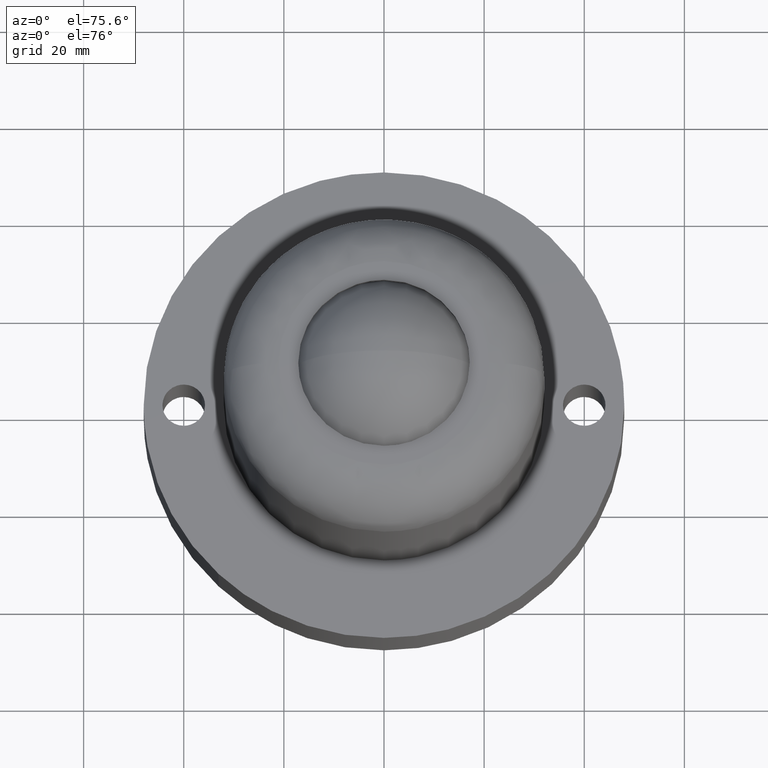
[diagram: clean part render]
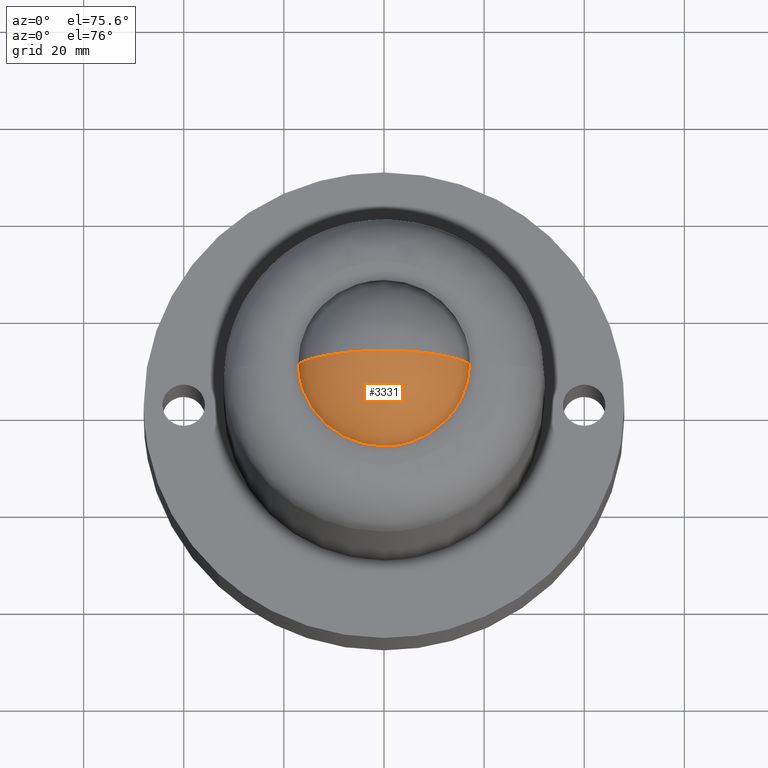
[diagram: same view with one face highlighted and labeled with its STEP entity id]
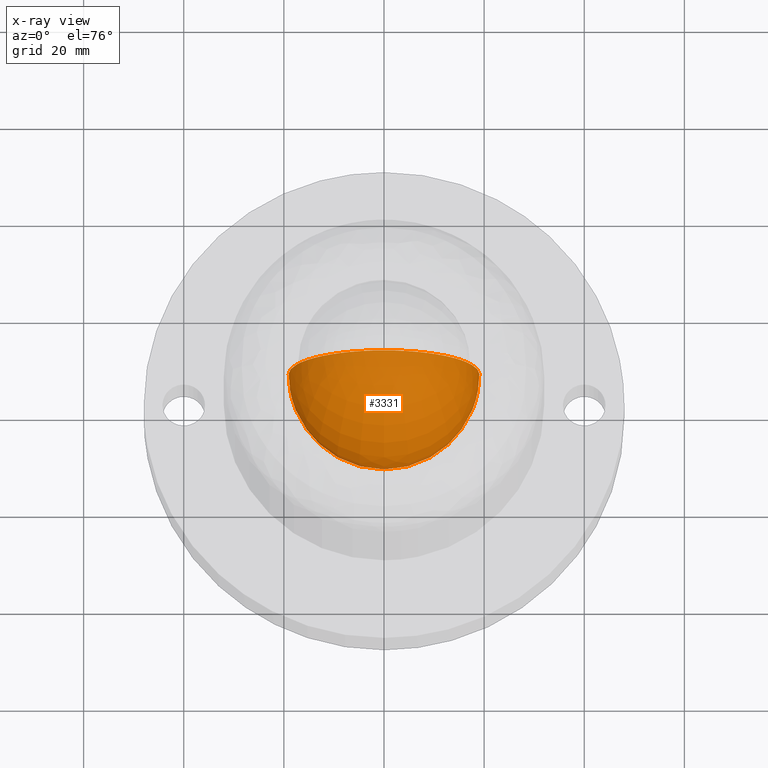
[diagram: x-ray of the same camera — body ghosted, the highlighted face saturated]
A machine part, auxiliary view. The second image highlights one B-rep face of the part: STEP entity #3331.
The next image is the same camera in x-ray: the body ghosted, the highlighted face saturated — about 0% of this face is hidden behind the body in this view.
In plain terms, the highlighted face is a freeform B-spline surface patch.
Its self-contained STEP definition (entity closure, byte-faithful):
#3209=CARTESIAN_POINT('',(-12.487380348525862,7.143750000000000,22.462619651474142));
#3210=CARTESIAN_POINT('',(-11.309325598664936,4.672641509433962,19.870899201780098));
#3211=CARTESIAN_POINT('',(-4.757097275628901,0.907142857142858,15.921610897484404));
#3212=CARTESIAN_POINT('',(4.757097275628901,0.907142857142858,15.921610897484404));
#3213=CARTESIAN_POINT('',(11.309325598664936,4.672641509433962,19.870899201780098));
#3214=CARTESIAN_POINT('',(12.487380348525862,7.143750000000000,22.462619651474142));
#3215=CARTESIAN_POINT('',(-15.079100798219910,4.672641509433962,23.640674401335072));
#3216=CARTESIAN_POINT('',(-14.271291826886699,0.907142857142858,20.678708173113300));
#3217=CARTESIAN_POINT('',(-6.445099534723027,-5.530645161290320,15.614701395830922));
#3218=CARTESIAN_POINT('',(6.445099534723027,-5.530645161290320,15.614701395830922));
#3219=CARTESIAN_POINT('',(14.271291826886699,0.907142857142858,20.678708173113300));
#3220=CARTESIAN_POINT('',(15.079100798219910,4.672641509433962,23.640674401335072));
#3221=CARTESIAN_POINT('',(-19.028389102515600,0.907142857142858,30.192902724371105));
#3222=CARTESIAN_POINT('',(-19.335298604169076,-5.530645161290320,28.504900465276975));
#3223=CARTESIAN_POINT('',(-9.989904278820692,-19.049999999999990,24.960095721179311));
#3224=CARTESIAN_POINT('',(9.989904278820692,-19.049999999999990,24.960095721179311));
#3225=CARTESIAN_POINT('',(19.335298604169076,-5.530645161290320,28.504900465276975));
#3226=CARTESIAN_POINT('',(19.028389102515600,0.907142857142858,30.192902724371105));
#3227=CARTESIAN_POINT('',(-19.028389102515600,0.907142857142858,39.707097275628904));
#3228=CARTESIAN_POINT('',(-19.335298604169076,-5.530645161290320,41.395099534723030));
#3229=CARTESIAN_POINT('',(-9.989904278820692,-19.049999999999990,44.939904278820691));
#3230=CARTESIAN_POINT('',(9.989904278820692,-19.049999999999990,44.939904278820691));
#3231=CARTESIAN_POINT('',(19.335298604169076,-5.530645161290320,41.395099534723030));
#3232=CARTESIAN_POINT('',(19.028389102515600,0.907142857142858,39.707097275628904));
#3233=CARTESIAN_POINT('',(-15.079100798219910,4.672641509433962,46.259325598664944));
#3234=CARTESIAN_POINT('',(-14.271291826886699,0.907142857142858,49.221291826886713));
#3235=CARTESIAN_POINT('',(-6.445099534723027,-5.530645161290320,54.285298604169078));
#3236=CARTESIAN_POINT('',(6.445099534723027,-5.530645161290320,54.285298604169078));
#3237=CARTESIAN_POINT('',(14.271291826886699,0.907142857142858,49.221291826886713));
#3238=CARTESIAN_POINT('',(15.079100798219910,4.672641509433962,46.259325598664944));
#3239=CARTESIAN_POINT('',(-12.487380348525862,7.143750000000000,47.437380348525878));
#3240=CARTESIAN_POINT('',(-11.309325598664936,4.672641509433962,50.029100798219922));
#3241=CARTESIAN_POINT('',(-4.757097275628901,0.907142857142858,53.978389102515621));
#3242=CARTESIAN_POINT('',(4.757097275628901,0.907142857142858,53.978389102515621));
#3243=CARTESIAN_POINT('',(11.309325598664936,4.672641509433962,50.029100798219922));
#3244=CARTESIAN_POINT('',(12.487380348525862,7.143750000000000,47.437380348525878));
#3252=(BOUNDED_SURFACE()B_SPLINE_SURFACE(2,2,((#3209,#3215,#3221,#3227,#3233,#3239),(#3210,#3216,#3222,#3228,#3234,#3240),(#3211,#3217,#3223,#3229,#3235,#3241),(#3212,#3218,#3224,#3230,#3236,#3242),(#3213,#3219,#3225,#3231,#3237,#3243),(#3214,#3220,#3226,#3232,#3238,#3244)),.UNSPECIFIED.,.F.,.F.,.U.)B_SPLINE_SURFACE_WITH_KNOTS((3,1,1,1,3),(3,1,1,1,3),(0.0,17.564666863860559,35.129333727721118,52.694000591581677,70.258667455442236),(0.0,17.564666863860580,35.129333727721153,52.694000591581727,70.258667455442307),.UNSPECIFIED.)GEOMETRIC_REPRESENTATION_ITEM()RATIONAL_B_SPLINE_SURFACE(((3.200000000000000,2.650000000000000,2.100000000000000,2.100000000000000,2.650000000000000,3.200000000000000),(2.650000000000000,2.100000000000000,1.550000000000000,1.550000000000000,2.100000000000000,2.650000000000000),(2.100000000000000,1.550000000000000,1.0,1.0,1.550000000000000,2.100000000000000),(2.100000000000000,1.550000000000000,1.0,1.0,1.550000000000000,2.100000000000000),(2.650000000000000,2.100000000000000,1.550000000000000,1.550000000000000,2.100000000000000,2.650000000000000),(3.200000000000000,2.650000000000000,2.100000000000000,2.100000000000000,2.650000000000000,3.200000000000000)))REPRESENTATION_ITEM('')SURFACE());
#3253=CARTESIAN_POINT('',(-19.049999999999969,0.0,34.949998973357182));
#3254=VERTEX_POINT('',#3253);
#3255=CARTESIAN_POINT('',(0.0,0.0,15.900000000000000));
#3256=VERTEX_POINT('',#3255);
#3257=CARTESIAN_POINT('',(-19.049999999999969,0.0,34.949998973357182));
#3258=CARTESIAN_POINT('',(-19.050149446085669,0.0,33.703174999994737));
#3259=CARTESIAN_POINT('',(-18.804348029869420,0.0,31.209578043562050));
#3260=CARTESIAN_POINT('',(-17.849748283523269,0.0,28.062479861777419));
#3261=CARTESIAN_POINT('',(-16.685259899046240,0.0,25.677020308036049));
#3262=CARTESIAN_POINT('',(-15.391360842403840,0.0,23.633586317101390));
#3263=CARTESIAN_POINT('',(-13.767569344941300,0.0,21.679554517631271));
#3264=CARTESIAN_POINT('',(-11.929080902976260,0.0,20.043891591100810));
#3265=CARTESIAN_POINT('',(-10.015989905578680,0.0,18.696518634644178));
#3266=CARTESIAN_POINT('',(-8.233574874691211,0.0,17.722614798938832));
#3267=CARTESIAN_POINT('',(-5.882441797125159,0.0,16.773953689874940));
#3268=CARTESIAN_POINT('',(-3.233912476894466,0.0,16.084576689910460));
#3269=CARTESIAN_POINT('',(-1.090966434752290,0.0,15.899908181740059));
#3270=CARTESIAN_POINT('',(0.0,0.0,15.900000000000000));
#3271=B_SPLINE_CURVE_WITH_KNOTS('',3,(#3257,#3258,#3259,#3260,#3261,#3262,#3263,#3264,#3265,#3266,#3267,#3268,#3269,#3270),.UNSPECIFIED.,.F.,.U.,(4,1,1,1,1,1,1,1,1,1,1,4),(0.000000081192344,3.740453603669312,7.480929728735045,9.818735779543253,11.688974270959131,14.728108096439810,17.416519320033601,19.052979858795009,21.741448061276280,23.494800678544681,26.650825748566181,29.923716388364639),.UNSPECIFIED.);
#3272=EDGE_CURVE('',#3254,#3256,#3271,.T.);
#3273=ORIENTED_EDGE('',*,*,#3272,.T.);
#3274=CARTESIAN_POINT('',(19.049999999999969,0.0,34.949998973357182));
#3275=VERTEX_POINT('',#3274);
#3276=CARTESIAN_POINT('',(19.049999999999969,0.0,34.949998973357182));
#3277=CARTESIAN_POINT('',(19.050149446085669,0.0,33.703174999994737));
#3278=CARTESIAN_POINT('',(18.804348029869420,0.0,31.209578043562050));
#3279=CARTESIAN_POINT('',(17.849748283523269,0.0,28.062479861777419));
#3280=CARTESIAN_POINT('',(16.685259899046240,0.0,25.677020308036049));
#3281=CARTESIAN_POINT('',(15.391360842403840,0.0,23.633586317101390));
#3282=CARTESIAN_POINT('',(13.767569344941300,0.0,21.679554517631271));
#3283=CARTESIAN_POINT('',(11.929080902976260,0.0,20.043891591100810));
#3284=CARTESIAN_POINT('',(10.015989905578680,0.0,18.696518634644178));
#3285=CARTESIAN_POINT('',(8.233574874691211,0.0,17.722614798938832));
#3286=CARTESIAN_POINT('',(5.882441797125159,0.0,16.773953689874940));
#3287=CARTESIAN_POINT('',(3.233912476894466,0.0,16.084576689910460));
#3288=CARTESIAN_POINT('',(1.090966434752290,0.0,15.899908181740059));
#3289=CARTESIAN_POINT('',(0.0,0.0,15.900000000000000));
#3290=B_SPLINE_CURVE_WITH_KNOTS('',3,(#3276,#3277,#3278,#3279,#3280,#3281,#3282,#3283,#3284,#3285,#3286,#3287,#3288,#3289),.UNSPECIFIED.,.F.,.U.,(4,1,1,1,1,1,1,1,1,1,1,4),(0.000000081192344,3.740453603669312,7.480929728735045,9.818735779543253,11.688974270959131,14.728108096439810,17.416519320033601,19.052979858795009,21.741448061276280,23.494800678544681,26.650825748566181,29.923716388364639),.UNSPECIFIED.);
#3291=EDGE_CURVE('',#3275,#3256,#3290,.T.);
#3292=ORIENTED_EDGE('',*,*,#3291,.F.);
#3293=CARTESIAN_POINT('',(0.0,0.0,54.000000000000007));
#3294=VERTEX_POINT('',#3293);
#3295=CARTESIAN_POINT('',(0.0,0.0,54.000000000000007));
#3296=CARTESIAN_POINT('',(1.519602092168499,0.0,54.000380335239022));
#3297=CARTESIAN_POINT('',(3.740312040271208,0.0,53.732803217943029));
#3298=CARTESIAN_POINT('',(6.615653625993748,0.0,52.860451109027998));
#3299=CARTESIAN_POINT('',(8.870074526929010,0.0,51.877709553904410));
#3300=CARTESIAN_POINT('',(10.936652063274011,0.0,50.613042036610160));
#3301=CARTESIAN_POINT('',(12.850973514390139,0.0,49.071216842531619));
#3302=CARTESIAN_POINT('',(14.437456934062951,0.0,47.455287505174923));
#3303=CARTESIAN_POINT('',(15.737438997290321,0.0,45.746607899210829));
#3304=CARTESIAN_POINT('',(17.094654425790150,0.0,43.513770616247577));
#3305=CARTESIAN_POINT('',(18.166970215345881,0.0,40.990795254454682));
#3306=CARTESIAN_POINT('',(18.897334995062579,0.0,37.872205418636781));
#3307=CARTESIAN_POINT('',(19.050064499207920,0.0,35.963043188654623));
#3308=CARTESIAN_POINT('',(19.049999999999969,0.0,34.949998973357182));
#3309=B_SPLINE_CURVE_WITH_KNOTS('',3,(#3295,#3296,#3297,#3298,#3299,#3300,#3301,#3302,#3303,#3304,#3305,#3306,#3307,#3308),.UNSPECIFIED.,.F.,.U.,(4,1,1,1,1,1,1,1,1,1,1,4),(0.000000081066062,4.558683256102349,6.662697972366956,9.000503588542816,11.922742527530181,13.909888621853129,16.364528541029198,18.702296471209319,20.338762427567652,24.196133562953790,26.884591591583661,29.923717545632201),.UNSPECIFIED.);
#3310=EDGE_CURVE('',#3294,#3275,#3309,.T.);
#3311=ORIENTED_EDGE('',*,*,#3310,.F.);
#3312=CARTESIAN_POINT('',(0.0,0.0,54.000000000000007));
#3313=CARTESIAN_POINT('',(-1.519602092168499,0.0,54.000380335239022));
#3314=CARTESIAN_POINT('',(-3.740312040271208,0.0,53.732803217943029));
#3315=CARTESIAN_POINT('',(-6.615653625993748,0.0,52.860451109027998));
#3316=CARTESIAN_POINT('',(-8.870074526929010,0.0,51.877709553904410));
#3317=CARTESIAN_POINT('',(-10.936652063274011,0.0,50.613042036610160));
#3318=CARTESIAN_POINT('',(-12.850973514390139,0.0,49.071216842531619));
#3319=CARTESIAN_POINT('',(-14.437456934062951,0.0,47.455287505174923));
#3320=CARTESIAN_POINT('',(-15.737438997290321,0.0,45.746607899210829));
#3321=CARTESIAN_POINT('',(-17.094654425790150,0.0,43.513770616247577));
#3322=CARTESIAN_POINT('',(-18.166970215345881,0.0,40.990795254454682));
#3323=CARTESIAN_POINT('',(-18.897334995062579,0.0,37.872205418636781));
#3324=CARTESIAN_POINT('',(-19.050064499207920,0.0,35.963043188654623));
#3325=CARTESIAN_POINT('',(-19.049999999999969,0.0,34.949998973357182));
#3326=B_SPLINE_CURVE_WITH_KNOTS('',3,(#3312,#3313,#3314,#3315,#3316,#3317,#3318,#3319,#3320,#3321,#3322,#3323,#3324,#3325),.UNSPECIFIED.,.F.,.U.,(4,1,1,1,1,1,1,1,1,1,1,4),(0.000000081066062,4.558683256102349,6.662697972366956,9.000503588542816,11.922742527530181,13.909888621853129,16.364528541029198,18.702296471209319,20.338762427567652,24.196133562953790,26.884591591583661,29.923717545632201),.UNSPECIFIED.);
#3327=EDGE_CURVE('',#3294,#3254,#3326,.T.);
#3328=ORIENTED_EDGE('',*,*,#3327,.T.);
#3329=EDGE_LOOP('',(#3273,#3292,#3311,#3328));
#3330=FACE_OUTER_BOUND('',#3329,.T.);
#3331=ADVANCED_FACE('',(#3330),#3252,.T.);